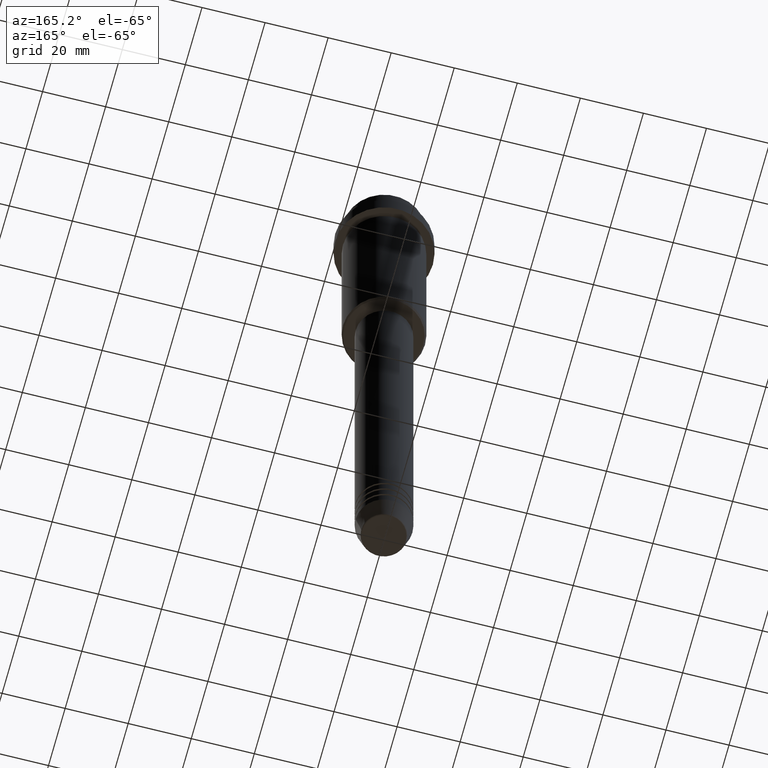
[diagram: clean part render]
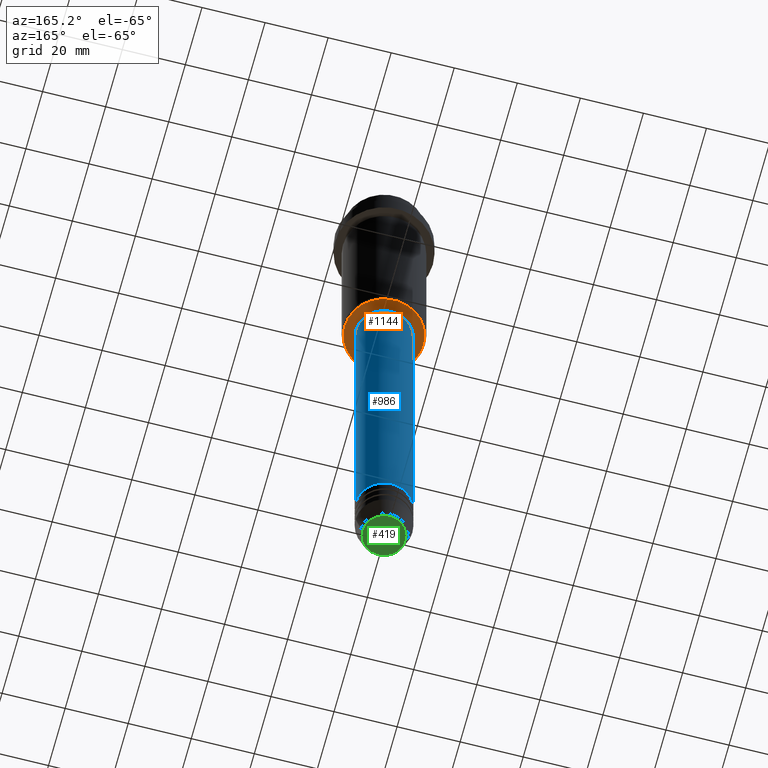
[diagram: same view with three faces highlighted in distinct colors, each labeled with its STEP entity id]
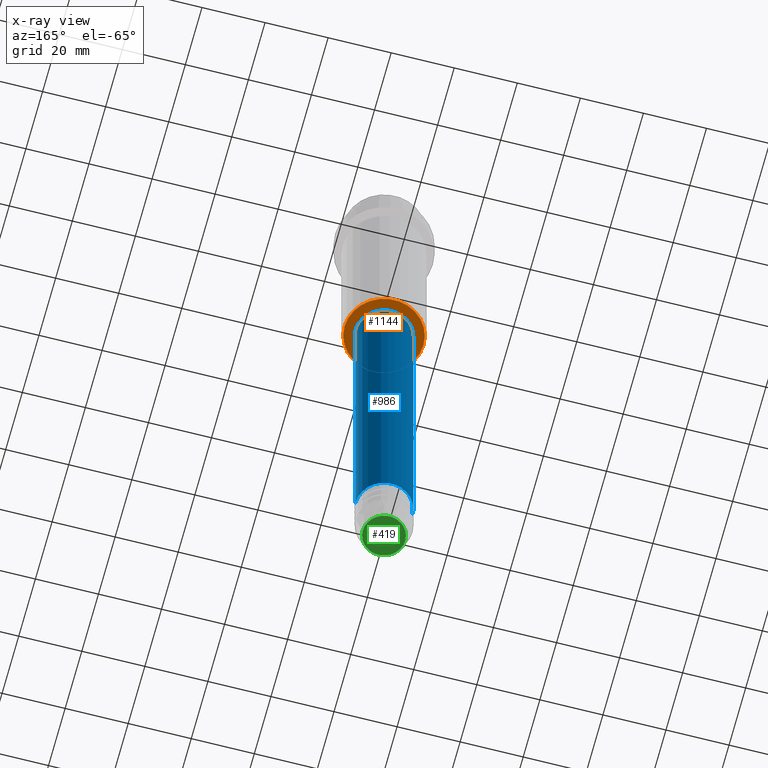
[diagram: x-ray of the same camera — body ghosted, the three highlighted faces saturated]
A machine part, auxiliary view with three faces highlighted in distinct colors.
The next image is the same camera in x-ray (body ghosted, the three faces saturated) — at least one of them is partly hidden behind the body in this view.
Their STEP definitions:

[orange] entity #1144 — the highlighted planar face has unit normal (0, 0, -1).
#18 = EDGE_LOOP ( 'NONE', ( #1255, #750 ) ) ;
#21 = FACE_BOUND ( 'NONE', #18, .T. ) ;
#27 = AXIS2_PLACEMENT_3D ( 'NONE', #875, #341, #1107 ) ;
#54 = VERTEX_POINT ( 'NONE', #170 ) ;
#55 = DIRECTION ( 'NONE',  ( -0.000000000000000000, -0.000000000000000000, 1.000000000000000000 ) ) ;
#139 = CIRCLE ( 'NONE', #27, 8.499999999999994671 ) ;
#141 = AXIS2_PLACEMENT_3D ( 'NONE', #1110, #1128, #1226 ) ;
#170 = CARTESIAN_POINT ( 'NONE',  ( 8.499999999999994671, 0.000000000000000000, -74.99999999999998579 ) ) ;
#215 = DIRECTION ( 'NONE',  ( 0.000000000000000000, 0.000000000000000000, -1.000000000000000000 ) ) ;
#333 = EDGE_CURVE ( 'NONE', #971, #704, #1378, .T. ) ;
#341 = DIRECTION ( 'NONE',  ( -0.000000000000000000, -0.000000000000000000, 1.000000000000000000 ) ) ;
#385 = CARTESIAN_POINT ( 'NONE',  ( 0.000000000000000000, 0.000000000000000000, -74.99999999999998579 ) ) ;
#447 = PLANE ( 'NONE',  #784 ) ;
#480 = CARTESIAN_POINT ( 'NONE',  ( -12.50000000000001066, 1.561424668912876097E-15, -74.99999999999998579 ) ) ;
#497 = CIRCLE ( 'NONE', #837, 8.499999999999994671 ) ;
#530 = CARTESIAN_POINT ( 'NONE',  ( 0.000000000000000000, 0.000000000000000000, -74.99999999999998579 ) ) ;
#551 = FACE_OUTER_BOUND ( 'NONE', #1201, .T. ) ;
#602 = CARTESIAN_POINT ( 'NONE',  ( 12.50000000000001066, 0.000000000000000000, -74.99999999999998579 ) ) ;
#634 = CIRCLE ( 'NONE', #788, 12.50000000000001066 ) ;
#685 = CARTESIAN_POINT ( 'NONE',  ( 0.000000000000000000, 13.00000000000000000, -74.99999999999998579 ) ) ;
#699 = VERTEX_POINT ( 'NONE', #751 ) ;
#704 = VERTEX_POINT ( 'NONE', #602 ) ;
#750 = ORIENTED_EDGE ( 'NONE', *, *, #809, .T. ) ;
#751 = CARTESIAN_POINT ( 'NONE',  ( -8.499999999999994671, 1.040949779275249745E-15, -74.99999999999998579 ) ) ;
#778 = ORIENTED_EDGE ( 'NONE', *, *, #333, .T. ) ;
#784 = AXIS2_PLACEMENT_3D ( 'NONE', #685, #900, #1127 ) ;
#788 = AXIS2_PLACEMENT_3D ( 'NONE', #530, #215, #853 ) ;
#809 = EDGE_CURVE ( 'NONE', #699, #54, #139, .T. ) ;
#837 = AXIS2_PLACEMENT_3D ( 'NONE', #385, #55, #932 ) ;
#853 = DIRECTION ( 'NONE',  ( -1.000000000000000000, 0.000000000000000000, 0.000000000000000000 ) ) ;
#870 = EDGE_CURVE ( 'NONE', #54, #699, #497, .T. ) ;
#875 = CARTESIAN_POINT ( 'NONE',  ( 0.000000000000000000, 0.000000000000000000, -74.99999999999998579 ) ) ;
#900 = DIRECTION ( 'NONE',  ( 0.000000000000000000, 0.000000000000000000, -1.000000000000000000 ) ) ;
#932 = DIRECTION ( 'NONE',  ( 1.000000000000000000, 0.000000000000000000, 0.000000000000000000 ) ) ;
#971 = VERTEX_POINT ( 'NONE', #480 ) ;
#1029 = EDGE_CURVE ( 'NONE', #704, #971, #634, .T. ) ;
#1080 = ORIENTED_EDGE ( 'NONE', *, *, #1029, .T. ) ;
#1107 = DIRECTION ( 'NONE',  ( 1.000000000000000000, 0.000000000000000000, 0.000000000000000000 ) ) ;
#1110 = CARTESIAN_POINT ( 'NONE',  ( 0.000000000000000000, 0.000000000000000000, -74.99999999999998579 ) ) ;
#1127 = DIRECTION ( 'NONE',  ( -1.000000000000000000, 0.000000000000000000, -0.000000000000000000 ) ) ;
#1128 = DIRECTION ( 'NONE',  ( 0.000000000000000000, 0.000000000000000000, -1.000000000000000000 ) ) ;
#1144 = ADVANCED_FACE ( 'NONE', ( #551, #21 ), #447, .T. ) ;
#1201 = EDGE_LOOP ( 'NONE', ( #1080, #778 ) ) ;
#1226 = DIRECTION ( 'NONE',  ( -1.000000000000000000, 0.000000000000000000, 0.000000000000000000 ) ) ;
#1255 = ORIENTED_EDGE ( 'NONE', *, *, #870, .T. ) ;
#1378 = CIRCLE ( 'NONE', #141, 12.50000000000001066 ) ;

[blue] entity #986 — the highlighted cylindrical surface (edge-blend (fillet) strip) has radius 9 mm, axis along (-0, -0, 1).
#41 = CIRCLE ( 'NONE', #231, 9.000000000000000000 ) ;
#113 = DIRECTION ( 'NONE',  ( -0.000000000000000000, -0.000000000000000000, 1.000000000000000000 ) ) ;
#117 = CARTESIAN_POINT ( 'NONE',  ( -9.000000000000000000, 1.102182119232617714E-15, -200.9999999999998579 ) ) ;
#129 = CARTESIAN_POINT ( 'NONE',  ( 0.000000000000000000, 0.000000000000000000, -75.99999999999998579 ) ) ;
#173 = EDGE_CURVE ( 'NONE', #896, #1146, #41, .T. ) ;
#209 = VERTEX_POINT ( 'NONE', #1068 ) ;
#217 = LINE ( 'NONE', #1011, #432 ) ;
#223 = EDGE_CURVE ( 'NONE', #896, #1389, #731, .T. ) ;
#231 = AXIS2_PLACEMENT_3D ( 'NONE', #1172, #396, #314 ) ;
#314 = DIRECTION ( 'NONE',  ( 1.000000000000000000, 0.000000000000000000, 0.000000000000000000 ) ) ;
#372 = DIRECTION ( 'NONE',  ( 1.000000000000000000, 0.000000000000000000, 0.000000000000000000 ) ) ;
#379 = ORIENTED_EDGE ( 'NONE', *, *, #173, .T. ) ;
#394 = CARTESIAN_POINT ( 'NONE',  ( 0.000000000000000000, 0.000000000000000000, 0.000000000000000000 ) ) ;
#396 = DIRECTION ( 'NONE',  ( -0.000000000000000000, -0.000000000000000000, 1.000000000000000000 ) ) ;
#423 = DIRECTION ( 'NONE',  ( -0.000000000000000000, -0.000000000000000000, 1.000000000000000000 ) ) ;
#432 = VECTOR ( 'NONE', #423, 1000.000000000000000 ) ;
#492 = FACE_OUTER_BOUND ( 'NONE', #667, .T. ) ;
#520 = CARTESIAN_POINT ( 'NONE',  ( 9.000000000000001776, 0.000000000000000000, 0.000000000000000000 ) ) ;
#619 = ORIENTED_EDGE ( 'NONE', *, *, #792, .T. ) ;
#637 = VECTOR ( 'NONE', #753, 1000.000000000000000 ) ;
#667 = EDGE_LOOP ( 'NONE', ( #379, #619, #943, #1024 ) ) ;
#731 = LINE ( 'NONE', #520, #637 ) ;
#753 = DIRECTION ( 'NONE',  ( -0.000000000000000000, -0.000000000000000000, 1.000000000000000000 ) ) ;
#756 = EDGE_CURVE ( 'NONE', #1389, #209, #1314, .T. ) ;
#792 = EDGE_CURVE ( 'NONE', #1146, #209, #217, .T. ) ;
#842 = DIRECTION ( 'NONE',  ( -0.000000000000000000, -0.000000000000000000, 1.000000000000000000 ) ) ;
#896 = VERTEX_POINT ( 'NONE', #1286 ) ;
#923 = CARTESIAN_POINT ( 'NONE',  ( 9.000000000000001776, 0.000000000000000000, -75.99999999999998579 ) ) ;
#943 = ORIENTED_EDGE ( 'NONE', *, *, #756, .F. ) ;
#986 = ADVANCED_FACE ( 'NONE', ( #492 ), #1357, .T. ) ;
#1000 = DIRECTION ( 'NONE',  ( 1.000000000000000000, 0.000000000000000000, 0.000000000000000000 ) ) ;
#1011 = CARTESIAN_POINT ( 'NONE',  ( -9.000000000000001776, 1.102182119232617911E-15, 0.000000000000000000 ) ) ;
#1024 = ORIENTED_EDGE ( 'NONE', *, *, #223, .F. ) ;
#1053 = AXIS2_PLACEMENT_3D ( 'NONE', #394, #842, #372 ) ;
#1068 = CARTESIAN_POINT ( 'NONE',  ( -9.000000000000001776, 1.102182119232617911E-15, -75.99999999999998579 ) ) ;
#1073 = AXIS2_PLACEMENT_3D ( 'NONE', #129, #113, #1000 ) ;
#1146 = VERTEX_POINT ( 'NONE', #117 ) ;
#1172 = CARTESIAN_POINT ( 'NONE',  ( 0.000000000000000000, 0.000000000000000000, -200.9999999999998579 ) ) ;
#1286 = CARTESIAN_POINT ( 'NONE',  ( 9.000000000000000000, 0.000000000000000000, -200.9999999999998579 ) ) ;
#1314 = CIRCLE ( 'NONE', #1073, 9.000000000000001776 ) ;
#1357 = CYLINDRICAL_SURFACE ( 'NONE', #1053, 9.000000000000001776 ) ;
#1389 = VERTEX_POINT ( 'NONE', #923 ) ;

[green] entity #419 — the highlighted planar face has unit normal (0, -0, 1).
#34 = DIRECTION ( 'NONE',  ( 0.000000000000000000, -0.000000000000000000, 1.000000000000000000 ) ) ;
#219 = EDGE_CURVE ( 'NONE', #386, #820, #664, .T. ) ;
#237 = CARTESIAN_POINT ( 'NONE',  ( 6.740692158992658278, 0.000000000000000000, -219.9999999999999716 ) ) ;
#291 = DIRECTION ( 'NONE',  ( 1.000000000000000000, 0.000000000000000000, 0.000000000000000000 ) ) ;
#386 = VERTEX_POINT ( 'NONE', #681 ) ;
#419 = ADVANCED_FACE ( 'NONE', ( #1143 ), #720, .F. ) ;
#458 = CIRCLE ( 'NONE', #691, 6.740692158992658278 ) ;
#628 = DIRECTION ( 'NONE',  ( 0.000000000000000000, 0.000000000000000000, -1.000000000000000000 ) ) ;
#664 = CIRCLE ( 'NONE', #1230, 6.740692158992658278 ) ;
#681 = CARTESIAN_POINT ( 'NONE',  ( -6.740692158992658278, 8.550696569392685681E-16, -219.9999999999999716 ) ) ;
#691 = AXIS2_PLACEMENT_3D ( 'NONE', #1323, #892, #1224 ) ;
#703 = ORIENTED_EDGE ( 'NONE', *, *, #219, .T. ) ;
#708 = DIRECTION ( 'NONE',  ( 1.000000000000000000, 0.000000000000000000, 0.000000000000000000 ) ) ;
#720 = PLANE ( 'NONE',  #1161 ) ;
#795 = EDGE_CURVE ( 'NONE', #820, #386, #458, .T. ) ;
#798 = CARTESIAN_POINT ( 'NONE',  ( 0.000000000000000000, 0.000000000000000000, -219.9999999999999716 ) ) ;
#820 = VERTEX_POINT ( 'NONE', #237 ) ;
#892 = DIRECTION ( 'NONE',  ( 0.000000000000000000, 0.000000000000000000, -1.000000000000000000 ) ) ;
#1038 = ORIENTED_EDGE ( 'NONE', *, *, #795, .T. ) ;
#1143 = FACE_OUTER_BOUND ( 'NONE', #1343, .T. ) ;
#1161 = AXIS2_PLACEMENT_3D ( 'NONE', #798, #34, #708 ) ;
#1224 = DIRECTION ( 'NONE',  ( 1.000000000000000000, 0.000000000000000000, 0.000000000000000000 ) ) ;
#1230 = AXIS2_PLACEMENT_3D ( 'NONE', #1284, #628, #291 ) ;
#1284 = CARTESIAN_POINT ( 'NONE',  ( 0.000000000000000000, 0.000000000000000000, -219.9999999999999716 ) ) ;
#1323 = CARTESIAN_POINT ( 'NONE',  ( 0.000000000000000000, 0.000000000000000000, -219.9999999999999716 ) ) ;
#1343 = EDGE_LOOP ( 'NONE', ( #1038, #703 ) ) ;